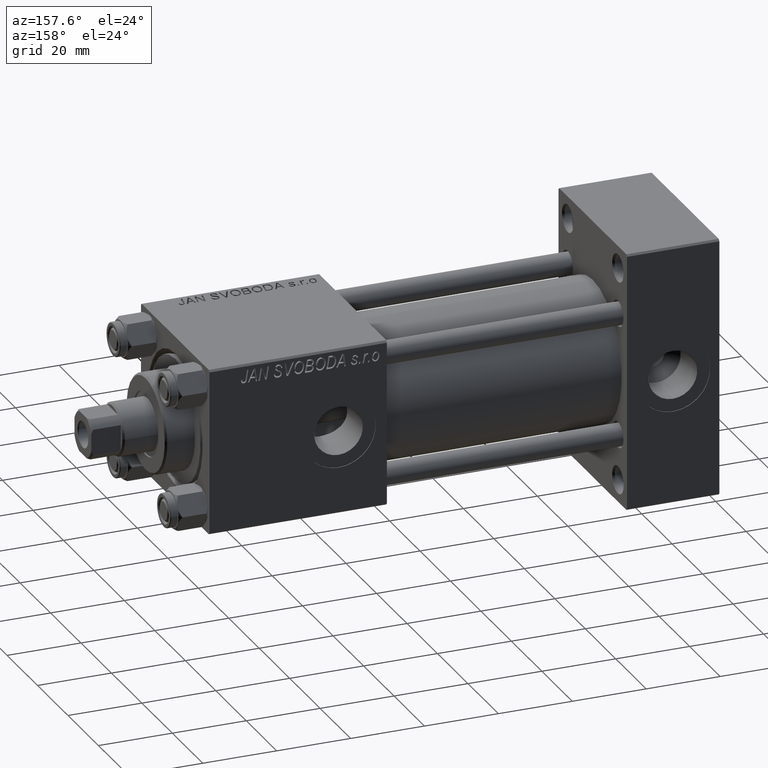
[diagram: clean part render]
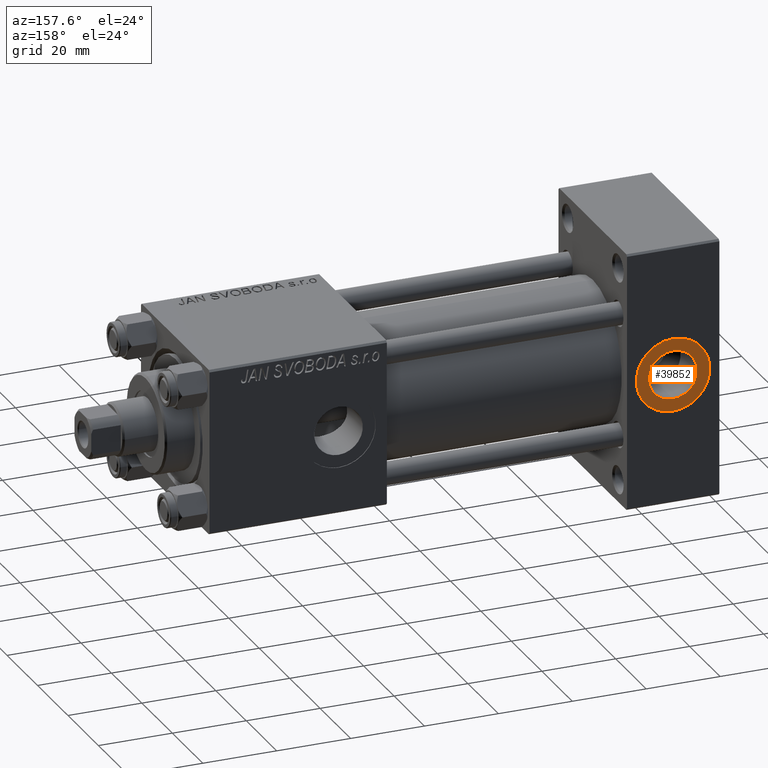
[diagram: same view with one face highlighted and labeled with its STEP entity id]
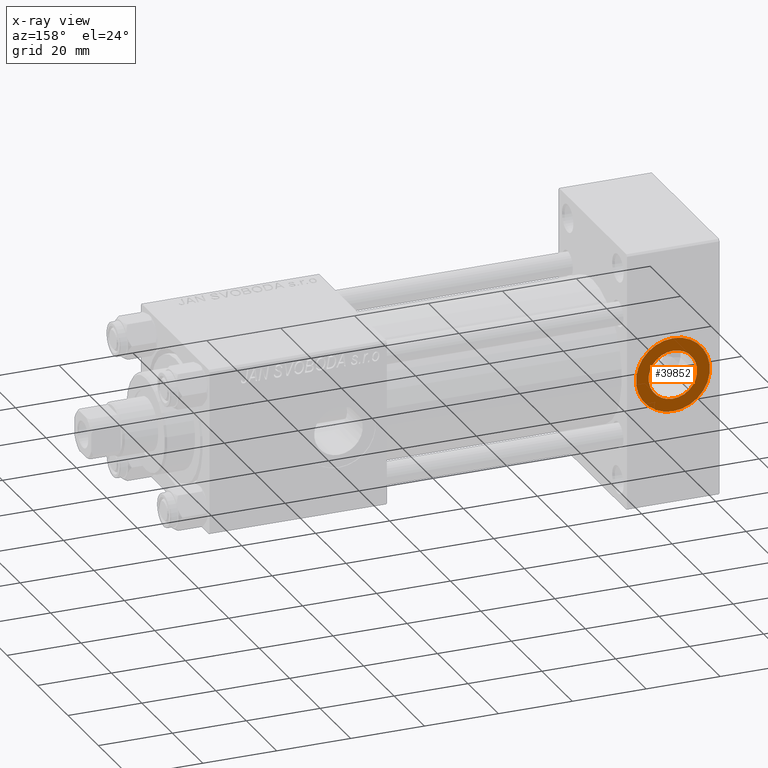
[diagram: x-ray of the same camera — body ghosted, the highlighted face saturated]
A machine part, auxiliary view. The second image highlights one B-rep face of the part: STEP entity #39852.
The next image is the same camera in x-ray: the body ghosted, the highlighted face saturated — about 0% of this face is hidden behind the body in this view.
In plain terms, the highlighted planar face has unit normal (0, 1, 0).
Its self-contained STEP definition (entity closure, byte-faithful):
#1123 = DIRECTION ( 'NONE',  ( 0.000000000000000000, -0.000000000000000000, 1.000000000000000000 ) ) ;
#1681 = DIRECTION ( 'NONE',  ( 0.000000000000000000, 0.000000000000000000, 1.000000000000000000 ) ) ;
#3728 = CARTESIAN_POINT ( 'NONE',  ( 12.50000000000000000, 22.30000000000000426, 9.999999999999996447 ) ) ;
#4844 = EDGE_CURVE ( 'NONE', #44063, #49900, #35973, .T. ) ;
#6571 = VERTEX_POINT ( 'NONE', #24006 ) ;
#6939 = AXIS2_PLACEMENT_3D ( 'NONE', #39626, #32030, #12845 ) ;
#7164 = ORIENTED_EDGE ( 'NONE', *, *, #21672, .F. ) ;
#7224 = CIRCLE ( 'NONE', #30588, 9.999999999999996447 ) ;
#10116 = EDGE_CURVE ( 'NONE', #45759, #6571, #28718, .T. ) ;
#11098 = CARTESIAN_POINT ( 'NONE',  ( 12.50000000000000000, 22.30000000000000426, -6.579999999999998295 ) ) ;
#12511 = PLANE ( 'NONE',  #26940 ) ;
#12845 = DIRECTION ( 'NONE',  ( 0.000000000000000000, 0.000000000000000000, 1.000000000000000000 ) ) ;
#13007 = DIRECTION ( 'NONE',  ( 0.000000000000000000, 1.000000000000000000, 0.000000000000000000 ) ) ;
#17389 = EDGE_CURVE ( 'NONE', #49900, #44063, #7224, .T. ) ;
#20628 = CARTESIAN_POINT ( 'NONE',  ( 12.50000000000000000, 22.30000000000000426, 0.000000000000000000 ) ) ;
#21292 = CARTESIAN_POINT ( 'NONE',  ( 12.50000000000000178, 22.30000000000000426, -9.999999999999996447 ) ) ;
#21529 = DIRECTION ( 'NONE',  ( 0.000000000000000000, 0.000000000000000000, 1.000000000000000000 ) ) ;
#21672 = EDGE_CURVE ( 'NONE', #6571, #45759, #43538, .T. ) ;
#24006 = CARTESIAN_POINT ( 'NONE',  ( 12.50000000000000000, 22.30000000000000426, 6.579999999999998295 ) ) ;
#24671 = DIRECTION ( 'NONE',  ( 0.000000000000000000, 1.000000000000000000, 0.000000000000000000 ) ) ;
#25100 = CARTESIAN_POINT ( 'NONE',  ( 12.50000000000000000, 22.30000000000000426, 0.000000000000000000 ) ) ;
#26067 = CARTESIAN_POINT ( 'NONE',  ( 12.50000000000000000, 22.30000000000000426, 0.000000000000000000 ) ) ;
#26940 = AXIS2_PLACEMENT_3D ( 'NONE', #47607, #13007, #1123 ) ;
#28653 = FACE_BOUND ( 'NONE', #29955, .T. ) ;
#28718 = CIRCLE ( 'NONE', #6939, 6.579999999999998295 ) ;
#28723 = AXIS2_PLACEMENT_3D ( 'NONE', #26067, #29850, #21529 ) ;
#29850 = DIRECTION ( 'NONE',  ( 0.000000000000000000, 1.000000000000000000, 0.000000000000000000 ) ) ;
#29955 = EDGE_LOOP ( 'NONE', ( #7164, #45986 ) ) ;
#30588 = AXIS2_PLACEMENT_3D ( 'NONE', #25100, #49513, #40511 ) ;
#32030 = DIRECTION ( 'NONE',  ( 0.000000000000000000, 1.000000000000000000, 0.000000000000000000 ) ) ;
#32679 = FACE_OUTER_BOUND ( 'NONE', #44975, .T. ) ;
#34665 = AXIS2_PLACEMENT_3D ( 'NONE', #20628, #24671, #1681 ) ;
#35924 = ORIENTED_EDGE ( 'NONE', *, *, #4844, .T. ) ;
#35973 = CIRCLE ( 'NONE', #28723, 9.999999999999996447 ) ;
#39626 = CARTESIAN_POINT ( 'NONE',  ( 12.50000000000000000, 22.30000000000000426, 0.000000000000000000 ) ) ;
#39852 = ADVANCED_FACE ( 'NONE', ( #28653, #32679 ), #12511, .T. ) ;
#40511 = DIRECTION ( 'NONE',  ( 0.000000000000000000, 0.000000000000000000, 1.000000000000000000 ) ) ;
#41983 = ORIENTED_EDGE ( 'NONE', *, *, #17389, .T. ) ;
#43538 = CIRCLE ( 'NONE', #34665, 6.579999999999998295 ) ;
#44063 = VERTEX_POINT ( 'NONE', #21292 ) ;
#44975 = EDGE_LOOP ( 'NONE', ( #41983, #35924 ) ) ;
#45759 = VERTEX_POINT ( 'NONE', #11098 ) ;
#45986 = ORIENTED_EDGE ( 'NONE', *, *, #10116, .F. ) ;
#47607 = CARTESIAN_POINT ( 'NONE',  ( 12.50000000000000000, 22.30000000000000426, 0.000000000000000000 ) ) ;
#49513 = DIRECTION ( 'NONE',  ( 0.000000000000000000, 1.000000000000000000, 0.000000000000000000 ) ) ;
#49900 = VERTEX_POINT ( 'NONE', #3728 ) ;